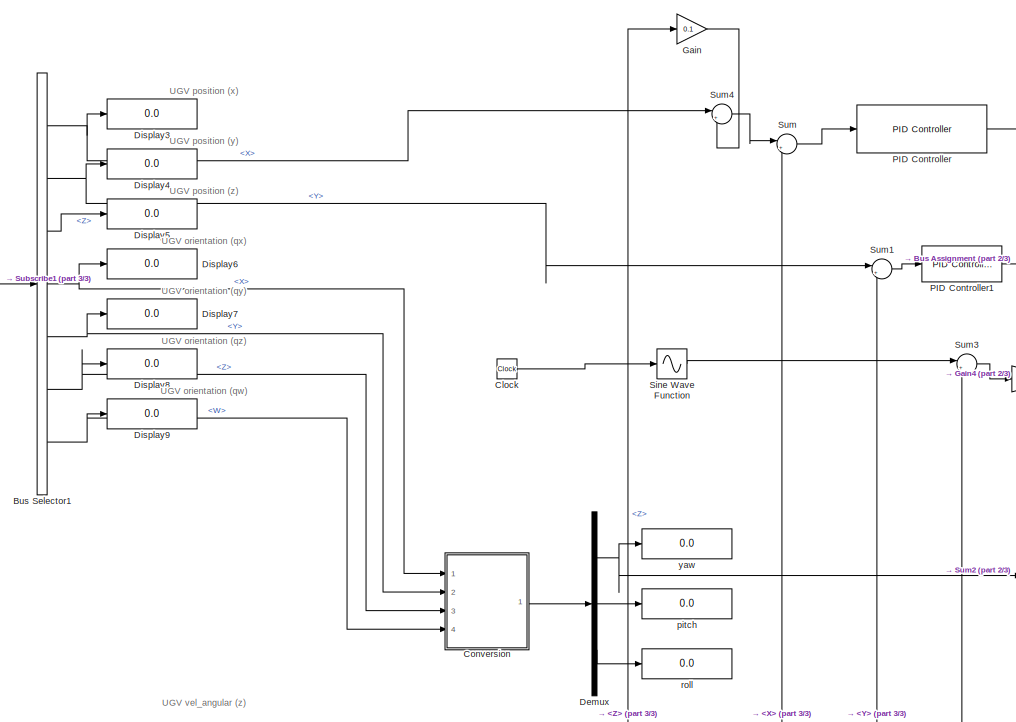
[diagram: root canvas - part 1/3, top center region]
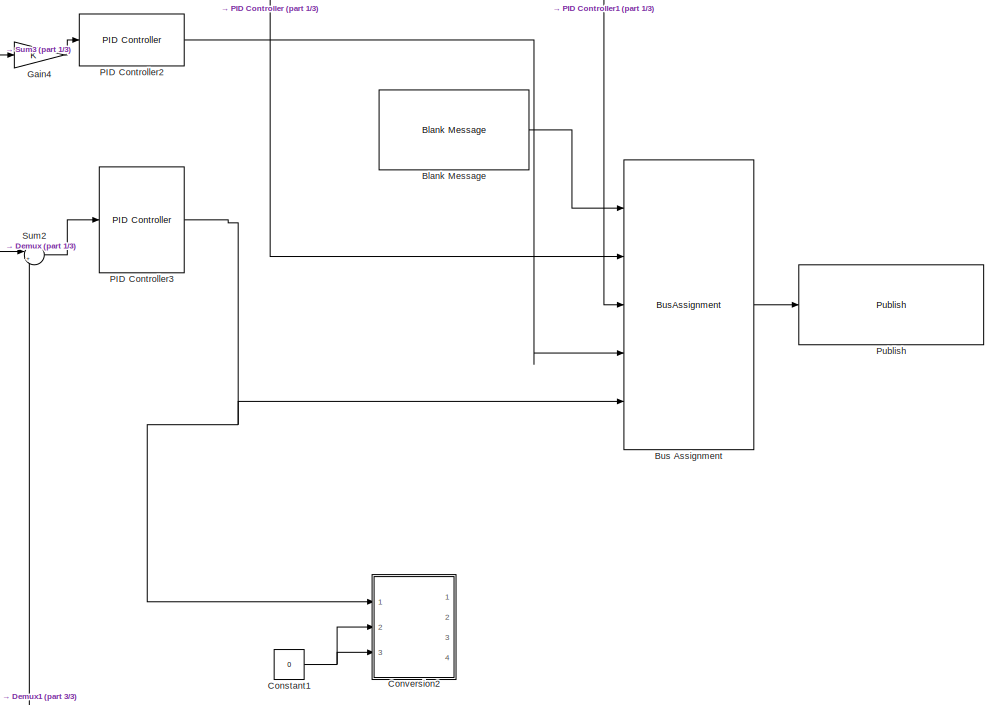
[diagram: root canvas - part 2/3, middle right region]
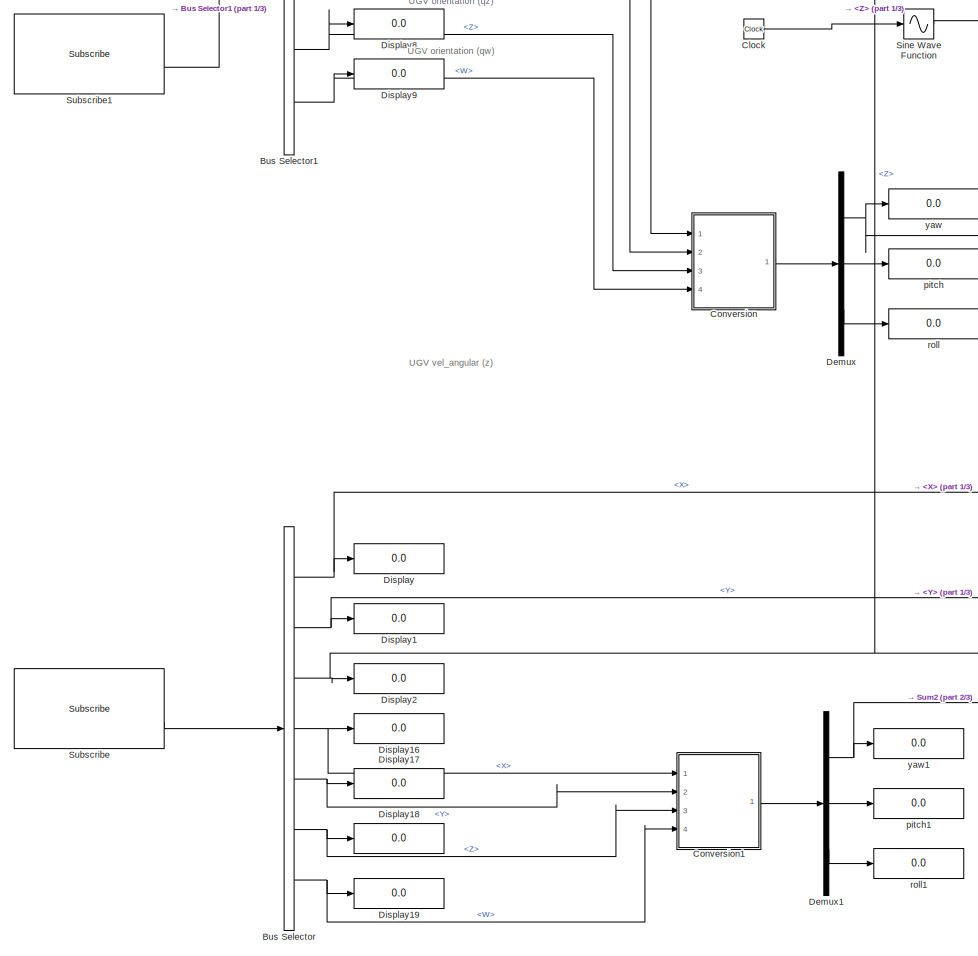
[diagram: root canvas - part 3/3, middle left region]
MODEL slx_1c87f33c453f
KIND model
CONFIG AbsTol = auto
CONFIG EnableMultiTasking = off
CONFIG FixedStep = 0.1
CONFIG MaxStep = auto
CONFIG MinStep = auto
CONFIG RelTol = 1e-3
CONFIG SampleTimeConstraint = Unconstrained
CONFIG SolverName = ode4
CONFIG StartTime = 0.0
CONFIG StopTime = inf
BLOCK [Reference] Blank Message  REF=robotlib/Blank Message
  Ports = [0, 1]
  SourceBlock = robotlib/Blank Message
  SourceProductBaseCode = RR
  SourceType = ROS Blank Message
BLOCK [BusAssignment] Bus Assignment
  AssignedSignals = Twist.Linear.X,Twist.Linear.Y,Twist.Linear.Z,Twist.Angular.Z
  Ports = [5, 1]
BLOCK [BusSelector] Bus Selector
  OutputSignals = Pose.Pose.Position.X,Pose.Pose.Position.Y,Pose.Pose.Position.Z,Pose.Pose.Orientation.X,Pose.Pose.Orientation.Y,Pose.Pose.Orientation.Z,Pose.Pose.Orientation.W
  Ports = [1, 7]
BLOCK [BusSelector] Bus Selector1
  OutputSignals = Pose.Pose.Position.X,Pose.Pose.Position.Y,Pose.Pose.Position.Z,Pose.Pose.Orientation.X,Pose.Pose.Orientation.Y,Pose.Pose.Orientation.Z,Pose.Pose.Orientation.W
  Ports = [1, 7]
BLOCK [Clock] Clock
BLOCK [Constant] Constant1
  Commented = on
  Value = 0
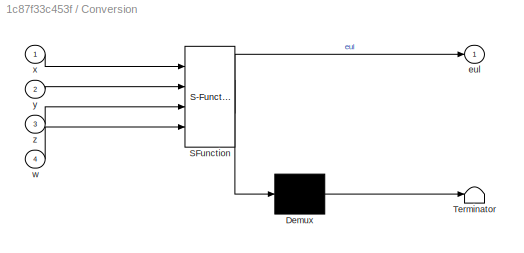
BLOCK [SubSystem] Conversion
  ErrorFcn = Stateflow.Translate.translate
  PermitHierarchicalResolution = ExplicitOnly
  Ports = [4, 1]
  RequestExecContextInheritance = off
  SFBlockType = MATLAB Function
  TreatAsAtomicUnit = on
BLOCK [Demux] Conversion/ Demux 
  Outputs = 1
  Ports = [1, 1]
BLOCK [S-Function] Conversion/ SFunction 
  EnableBusSupport = on
  FunctionName = sf_sfun
  PortCounts = [4 2]
  Ports = [4, 2]
  SFcnIsStateOwnerBlock = off
  SFunctionDeploymentMode = off
  Tag = Stateflow S-Function 2
BLOCK [Terminator] Conversion/ Terminator 
BLOCK [Outport] Conversion/eul
BLOCK [Inport] Conversion/w
  Port = 4
BLOCK [Inport] Conversion/x
BLOCK [Inport] Conversion/y
  Port = 2
BLOCK [Inport] Conversion/z
  Port = 3
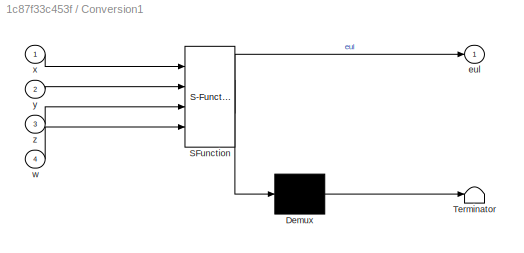
BLOCK [SubSystem] Conversion1
  ErrorFcn = Stateflow.Translate.translate
  PermitHierarchicalResolution = ExplicitOnly
  Ports = [4, 1]
  RequestExecContextInheritance = off
  SFBlockType = MATLAB Function
  TreatAsAtomicUnit = on
BLOCK [Demux] Conversion1/ Demux 
  Outputs = 1
  Ports = [1, 1]
BLOCK [S-Function] Conversion1/ SFunction 
  EnableBusSupport = on
  FunctionName = sf_sfun
  PortCounts = [4 2]
  Ports = [4, 2]
  SFcnIsStateOwnerBlock = off
  SFunctionDeploymentMode = off
  Tag = Stateflow S-Function 1
BLOCK [Terminator] Conversion1/ Terminator 
BLOCK [Outport] Conversion1/eul
BLOCK [Inport] Conversion1/w
  Port = 4
BLOCK [Inport] Conversion1/x
BLOCK [Inport] Conversion1/y
  Port = 2
BLOCK [Inport] Conversion1/z
  Port = 3
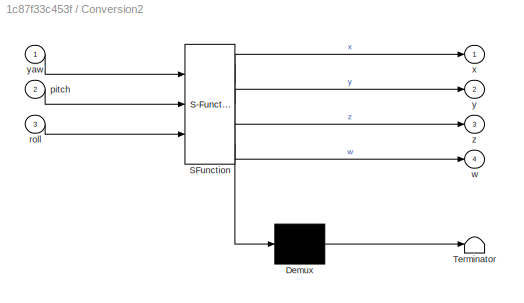
BLOCK [SubSystem] Conversion2
  Commented = on
  ErrorFcn = Stateflow.Translate.translate
  PermitHierarchicalResolution = ExplicitOnly
  Ports = [3, 4]
  RequestExecContextInheritance = off
  SFBlockType = MATLAB Function
  TreatAsAtomicUnit = on
BLOCK [Demux] Conversion2/ Demux 
  Outputs = 1
  Ports = [1, 1]
BLOCK [S-Function] Conversion2/ SFunction 
  EnableBusSupport = on
  FunctionName = sf_sfun
  PortCounts = [3 5]
  Ports = [3, 5]
  SFcnIsStateOwnerBlock = off
  SFunctionDeploymentMode = off
  Tag = Stateflow S-Function 3
BLOCK [Terminator] Conversion2/ Terminator 
BLOCK [Inport] Conversion2/pitch
  Port = 2
BLOCK [Inport] Conversion2/roll
  Port = 3
BLOCK [Outport] Conversion2/w
  Port = 4
BLOCK [Outport] Conversion2/x
BLOCK [Outport] Conversion2/y
  Port = 2
BLOCK [Inport] Conversion2/yaw
BLOCK [Outport] Conversion2/z
  Port = 3
BLOCK [Demux] Demux
  Outputs = 3
  Ports = [1, 3]
BLOCK [Demux] Demux1
  Outputs = 3
  Ports = [1, 3]
BLOCK [Display] Display
  Decimation = 1
  Ports = [1]
BLOCK [Display] Display1
  Decimation = 1
  Ports = [1]
BLOCK [Display] Display16
  Decimation = 1
  Ports = [1]
BLOCK [Display] Display17
  Decimation = 1
  Ports = [1]
BLOCK [Display] Display18
  Decimation = 1
  Ports = [1]
BLOCK [Display] Display19
  Decimation = 1
  Ports = [1]
BLOCK [Display] Display2
  Decimation = 1
  Ports = [1]
BLOCK [Display] Display3
  Decimation = 1
  Ports = [1]
BLOCK [Display] Display4
  Decimation = 1
  Ports = [1]
BLOCK [Display] Display5
  Decimation = 1
  Ports = [1]
BLOCK [Display] Display6
  Decimation = 1
  Ports = [1]
BLOCK [Display] Display7
  Decimation = 1
  Ports = [1]
BLOCK [Display] Display8
  Decimation = 1
  Ports = [1]
BLOCK [Display] Display9
  Decimation = 1
  Ports = [1]
BLOCK [Gain] Gain
  Gain = 0.1
BLOCK [Gain] Gain4
BLOCK [Reference] PID Controller  REF=slpidlib/PID Controller
  Ports = [1, 1]
  SourceBlock = slpidlib/PID Controller
  SourceProductBaseCode = SL
  SourceType = PID 1dof
BLOCK [Reference] PID Controller1  REF=slpidlib/PID Controller
  Ports = [1, 1]
  SourceBlock = slpidlib/PID Controller
  SourceProductBaseCode = SL
  SourceType = PID 1dof
BLOCK [Reference] PID Controller2  REF=slpidlib/PID Controller
  Ports = [1, 1]
  SourceBlock = slpidlib/PID Controller
  SourceProductBaseCode = SL
  SourceType = PID 1dof
BLOCK [Reference] PID Controller3  REF=slpidlib/PID Controller
  Ports = [1, 1]
  SourceBlock = slpidlib/PID Controller
  SourceProductBaseCode = SL
  SourceType = PID 1dof
BLOCK [Reference] Publish  REF=robotlib/Publish
  Ports = [1]
  SourceBlock = robotlib/Publish
  SourceProductBaseCode = RR
  SourceType = ROS Publish
BLOCK [Sin] Sine Wave Function
  Amplitude = 10
  Bias = 15
  Frequency = 0.001*pi
  Ports = [1, 1]
  SampleTime = 0
  TimeSource = Use external signal
BLOCK [Reference] Subscribe  REF=robotlib/Subscribe
  Ports = [0, 2]
  SourceBlock = robotlib/Subscribe
  SourceProductBaseCode = RR
  SourceType = ROS Subscribe
BLOCK [Reference] Subscribe1  REF=robotlib/Subscribe
  Ports = [0, 2]
  SourceBlock = robotlib/Subscribe
  SourceProductBaseCode = RR
  SourceType = ROS Subscribe
BLOCK [Sum] Sum
  Inputs = |+-
  Ports = [2, 1]
BLOCK [Sum] Sum1
  Inputs = |+-
  Ports = [2, 1]
BLOCK [Sum] Sum2
  Inputs = |+-
  Ports = [2, 1]
BLOCK [Sum] Sum3
  Inputs = |+-
  Ports = [2, 1]
BLOCK [Sum] Sum4
  Inputs = |++
  Ports = [2, 1]
BLOCK [Display] pitch
  Decimation = 1
  Ports = [1]
BLOCK [Display] pitch1
  Decimation = 1
  Ports = [1]
BLOCK [Display] roll
  Decimation = 1
  Ports = [1]
BLOCK [Display] roll1
  Decimation = 1
  Ports = [1]
BLOCK [Display] yaw
  Decimation = 1
  Ports = [1]
BLOCK [Display] yaw1
  Decimation = 1
  Ports = [1]
ANNOTATION (root): UGV orientation (qw)
ANNOTATION (root): UGV orientation (qx)
ANNOTATION (root): UGV orientation (qy)
ANNOTATION (root): UGV orientation (qz)
ANNOTATION (root): UGV position (x)
ANNOTATION (root): UGV position (y)
ANNOTATION (root): UGV position (z)
ANNOTATION (root): UGV vel_angular (z)
LINE Blank Message:1 -> Bus Assignment:1
LINE Bus Assignment:1 -> Publish:1
NET Bus Selector1:1 -> Display3:1, Sum4:1
NET Bus Selector1:2 -> Display4:1, Sum1:1
LINE Bus Selector1:3 -> Display5:1
NET Bus Selector1:4 -> Conversion:1, Display6:1
NET Bus Selector1:5 -> Conversion:2, Display7:1
NET Bus Selector1:6 -> Conversion:3, Display8:1
NET Bus Selector1:7 -> Conversion:4, Display9:1
NET Bus Selector:1 -> Display:1, Sum:2
NET Bus Selector:2 -> Display1:1, Sum1:2
NET Bus Selector:3 -> Display2:1, Gain:1, Sum3:2
NET Bus Selector:4 -> Conversion1:1, Display16:1
NET Bus Selector:5 -> Conversion1:2, Display17:1
NET Bus Selector:6 -> Conversion1:3, Display18:1
NET Bus Selector:7 -> Conversion1:4, Display19:1
LINE Clock:1 -> Sine Wave Function:1
NET Constant1:1 -> Conversion2:2, Conversion2:3
LINE Conversion1:1 -> Demux1:1
LINE Conversion:1 -> Demux:1
NET Demux1:1 -> Sum2:2, yaw1:1
LINE Demux1:2 -> pitch1:1
LINE Demux1:3 -> roll1:1
NET Demux:1 -> Sum2:1, yaw:1
LINE Demux:2 -> pitch:1
LINE Demux:3 -> roll:1
LINE Gain4:1 -> PID Controller2:1
LINE Gain:1 -> Sum4:2
LINE PID Controller1:1 -> Bus Assignment:3
LINE PID Controller2:1 -> Bus Assignment:4
NET PID Controller3:1 -> Bus Assignment:5, Conversion2:1
LINE PID Controller:1 -> Bus Assignment:2
LINE Sine Wave Function:1 -> Sum3:1
LINE Subscribe1:2 -> Bus Selector1:1
LINE Subscribe:2 -> Bus Selector:1
LINE Sum1:1 -> PID Controller1:1
LINE Sum2:1 -> PID Controller3:1
LINE Sum3:1 -> Gain4:1
LINE Sum4:1 -> Sum:1
LINE Sum:1 -> PID Controller:1
note: NET lines group one-source signal fan-out (src -> all destinations, sorted); 1:1 wires keep LINE
CHART Conversion1 states=1 transitions=1
  STATE_LABEL 'eML_blk_kernel()'
  STATE_LABEL 'SCRIPT:\nfunction eul  = quat2eul(x,y,z,w)\n%#codegen\n\n% Convert the quaternion to a yaw angle (zyx euler angle)\neul = quat2eul([w,x,y,z]);\n% yaw = eul(1);\n\nend\n'
CHART Conversion states=1 transitions=1
  STATE_LABEL 'eML_blk_kernel()'
  STATE_LABEL 'SCRIPT:\nfunction eul  = quat2eul(x,y,z,w)\n%#codegen\n\n% Convert the quaternion to a yaw angle (zyx euler angle)\neul = quat2eul([w,x,y,z]);\n% yaw = eul(1);\n\nend\n'
CHART Conversion2 states=1 transitions=1
  STATE_LABEL 'eML_blk_kernel()'
  STATE_LABEL 'SCRIPT:\nfunction [x,   y,   z,   w]   = eul2quat(yaw,pitch,roll)\n%#codegen\n\n% Convert the quaternion to a yaw angle (zyx euler angle)\nq = eul2quat([yaw,pitch,roll]);\nw=q(1);\nx=q(2);\ny=q(3);\nz=q(4);\nend\n'
CHART  states=0 transitions=0
CHART  states=0 transitions=0
CHART  states=0 transitions=0
